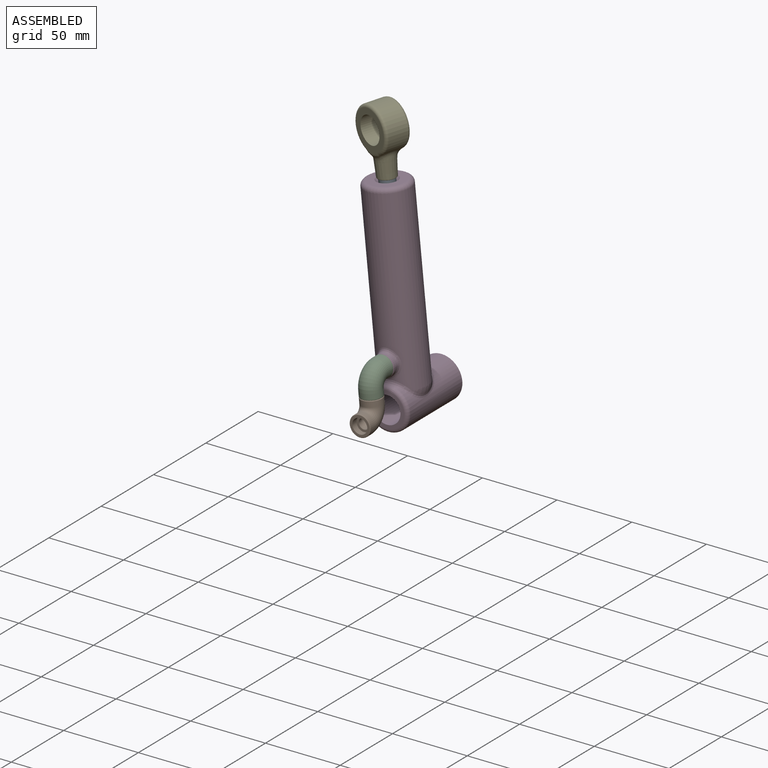
[diagram: assembled view]
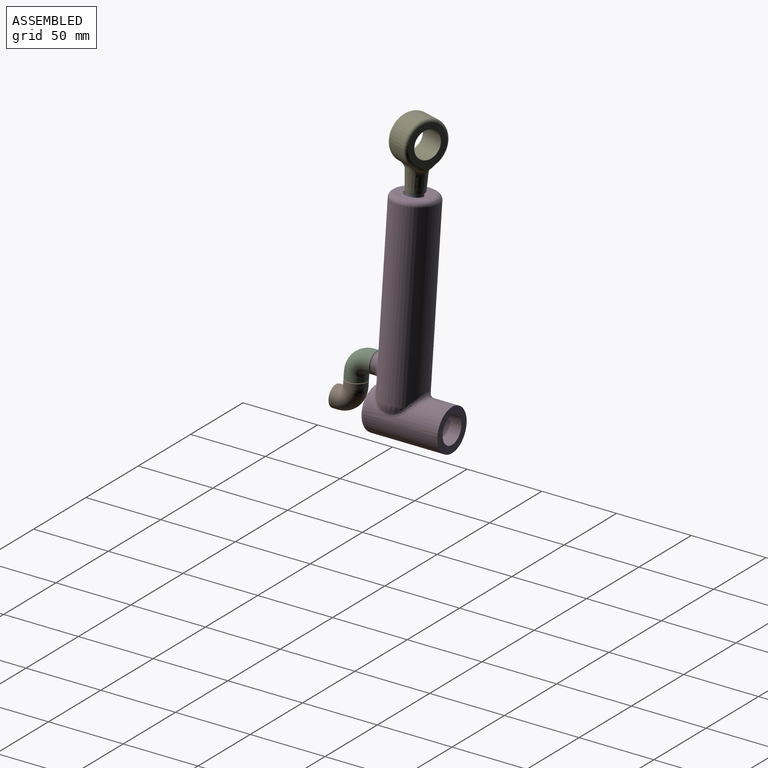
[diagram: assembled view, second angle]
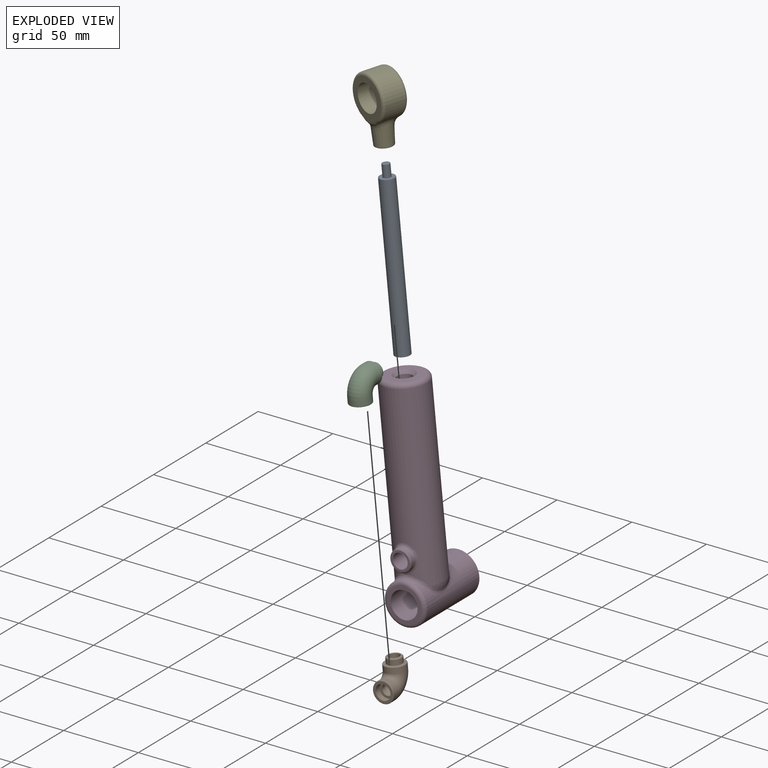
[diagram: exploded view]
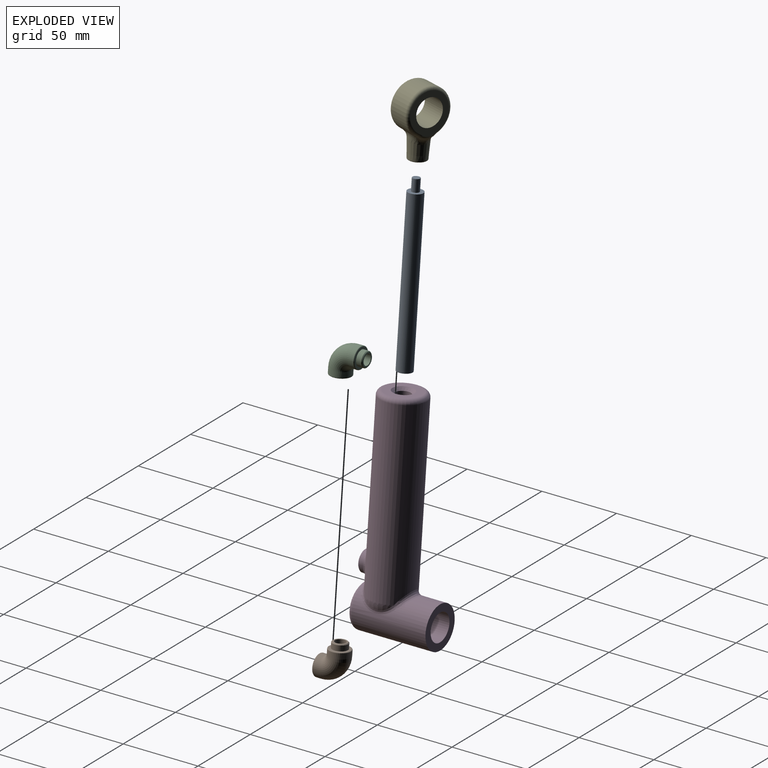
[diagram: exploded view, second angle]
ASSEMBLY  parts=5 mates=4
PART A: 5 faces, bbox 20.3x10x113.2 mm
  f0: plane 10x9.95mm, normal (0.1,0,-1), area 78.5mm2, adj f1
  f1: cylinder r=5mm len=105.47mm, axis (0.1,0,-1), area 3298.7mm2, adj f0,f2
  f2: plane 10x9.95mm, normal (-0.1,0,1), area 58.9mm2, adj f1,f3
  f3: cylinder r=2.5mm len=8.45mm, axis (0.1,0,-1), area 125.7mm2, adj f2,f4
  f4: plane 5x4.98mm, normal (-0.1,0,1), area 19.6mm2, adj f3
PART B: 14 faces, bbox 16.4x25.3x21.9 mm
  f0: plane 13x13mm, normal (0,1,0), area 54.2mm2, adj f7,f13
  f1: plane 13x12.94mm, normal (0.1,0,-1), area 54.2mm2, adj f10,f12
  f2: cylinder r=7mm len=14mm, axis (0,-1,0), area 153.9mm2, adj f3,f13
  f3: torus R=9mm, axis (1,0,0.1), area 621.8mm2, adj f2,f4
  f4: cylinder r=7mm len=14.28mm, axis (0.1,0,-1), area 153.9mm2, adj f3,f12
  f5: cylinder r=3.5mm len=8mm, axis (0,-1,0), area 175.9mm2, adj f6,f8
  f6: torus R=9mm, axis (1,0,0.1), area 310.9mm2, adj f5,f9
  f7: cylinder r=5mm len=10mm, axis (0,-1,0), area 110mm2, adj f0,f11
  f8: plane 9x9mm, normal (0,1,0), area 25.1mm2, adj f5,f11
  f9: plane 10x9.95mm, normal (0.1,0,-1), area 40.1mm2, adj f6,f10
  f10: cylinder r=5mm len=10.35mm, axis (0.1,0,-1), area 125.7mm2, adj f1,f9
  f11: cone r=5mm half-angle=45deg, axis (0,-1,0), area 21.1mm2, adj f7,f8
  f12: torus R=6.5mm, axis (0.1,0,-1), area 33.6mm2, adj f1,f4
  f13: torus R=6.5mm, axis (0,-1,0), area 33.6mm2, adj f0,f2
PART C: same geometry as B
PART D: 23 faces, bbox 43.9x52x145.8 mm
  f0: cylinder r=5mm len=108.14mm, axis (0.1,0,-1), area 3282.7mm2, adj f6,f16,f20
  f1: cylinder r=15mm len=119.39mm, axis (0.1,0,-1), area 10550.6mm2, adj f8,f9,f10,f13,f17,f21
  f2: cylinder r=14mm len=49.5mm, axis (0,1,0), area 3392.5mm2, adj f4,f10,f11,f12,f13,f14
  f3: plane 23.36x23mm, normal (0,-1,0), area 163.2mm2, adj f7,f14,f15
  f4: plane 28x28mm, normal (0,1,0), area 361.3mm2, adj f2,f7
  f5: plane 24x23.88mm, normal (-0.1,0,1), area 298.5mm2, adj f16,f17
  f6: plane 10x9.95mm, normal (-0.1,0,1), area 78.5mm2, adj f0
  f7: cylinder r=9mm len=52mm, axis (0,-1,0), area 2940.5mm2, adj f3,f4
  f8: torus R=5mm, axis (0.1,0,-1), area 66mm2, adj f1,f11
  f9: torus R=5mm, axis (0.1,0,-1), area 66mm2, adj f1,f12
  f10: bspline ~23.84x11.36mm, area 114.3mm2, adj f1,f2,f11,f12
  f11: bspline ~25.1x7.85mm, area 57.9mm2, adj f2,f8,f10,f13
  f12: bspline ~25.1x7.28mm, area 57.9mm2, adj f2,f9,f10,f13
  f13: bspline ~24.59x11.36mm, area 102.9mm2, adj f1,f2,f11,f12,f15,f21
  f14: torus R=11.5mm, axis (0,1,0), area 270.9mm2, adj f2,f3,f15
  f15: bspline ~17.32x5.83mm, area 44.4mm2, adj f3,f13,f14
  f16: cone r=7mm half-angle=45deg, axis (-0.1,0,1), area 106.6mm2, adj f0,f5
  f17: torus R=12mm, axis (-0.1,0,1), area 411.9mm2, adj f1,f5
  f18: plane 13x13mm, normal (0,-1,0), area 54.2mm2, adj f20,f22
  f19: cylinder r=7mm len=14mm, axis (0,-1,0), area 82.2mm2, adj f21,f22
  f20: cylinder r=5mm len=18.5mm, axis (0,-1,0), area 581.2mm2, adj f0,f18
  f21: bspline ~18.97x16.31mm, area 156.8mm2, adj f1,f13,f19
  f22: cone r=6.5mm half-angle=45deg, axis (0,1,0), area 30mm2, adj f18,f19
PART E: 21 faces, bbox 32.5x18.7x46.7 mm
  f0: cylinder r=15mm len=30mm, axis (0,1,0), area 996.2mm2, adj f9,f10,f12,f17
  f1: plane 27.1x26mm, normal (0,1,0), area 285.1mm2, adj f7,f16,f17,f18,f19
  f2: plane 27.1x26mm, normal (0,-1,0), area 285.1mm2, adj f7,f12,f13,f14,f15
  f3: cone r=6mm half-angle=3deg, axis (-0.1,0,1), area 454.5mm2, adj f8,f9,f10,f11,f20
  f4: plane 11.05x11mm, normal (0.1,0,-1), area 76.3mm2, adj f5,f20
  f5: cylinder r=2.5mm len=8.45mm, axis (0.1,0,-1), area 125.7mm2, adj f4,f6
  f6: plane 5x4.98mm, normal (0.1,0,-1), area 19.6mm2, adj f5
  f7: cylinder r=9mm len=18mm, axis (0,-1,0), area 961.3mm2, adj f1,f2
  f8: bspline ~13.24x6.05mm, area 33.6mm2, adj f3,f9,f10,f18
  f9: bspline ~18.74x7.01mm, area 71.2mm2, adj f0,f3,f8,f11,f13,f19
  f10: bspline ~17.01x5.5mm, area 71.2mm2, adj f0,f3,f8,f11,f14,f16
  f11: bspline ~12.8x6.02mm, area 33.6mm2, adj f3,f9,f10,f15
  f12: torus R=13mm, axis (0,-1,0), area 236.4mm2, adj f0,f2,f13,f14
  f13: bspline ~6.09x5.19mm, area 8mm2, adj f2,f9,f12,f15
  f14: bspline ~6.31x4.31mm, area 8mm2, adj f2,f10,f12,f15
  f15: bspline ~10.42x2.93mm, area 16.8mm2, adj f2,f11,f13,f14
  f16: bspline ~6.31x4.31mm, area 8mm2, adj f1,f10,f17,f18
  f17: torus R=13mm, axis (0,-1,0), area 236.4mm2, adj f0,f1,f16,f19
  f18: bspline ~10.55x3.09mm, area 16.8mm2, adj f1,f8,f16,f19
  f19: bspline ~6.09x5.19mm, area 8mm2, adj f1,f9,f17,f18
  f20: torus R=5.53mm, axis (-0.1,0,1), area 27.8mm2, adj f3,f4
PLACE A rot(axis=(1,0,0),0deg) t=(6.83,0,-68.83)mm
PLACE B rot(axis=(-0.07,0.71,0.7),180deg) t=(144.07,-130.95,119.76)mm
PLACE C at identity
PLACE D at identity fixed
PLACE E rot(axis=(0.1,0,-1),19.6deg) t=(28.32,23.06,-66.7)mm
MATE fastened B.f13 <-> C.f12  axis (-0.1,0,1) through (73.72,-82.5,42.94)mm
MATE fastened C.f13 <-> D.f22  axis (0,1,0) through (72.43,-69.5,55.87)mm
MATE slider A.f1 <-> D.f0  axis (0.1,0,-1) through (72.42,-51,56.03)mm
MATE revolute E.f5 <-> A.f1  axis (0.1,0,-1) through (62.05,-51,160.52)mm
